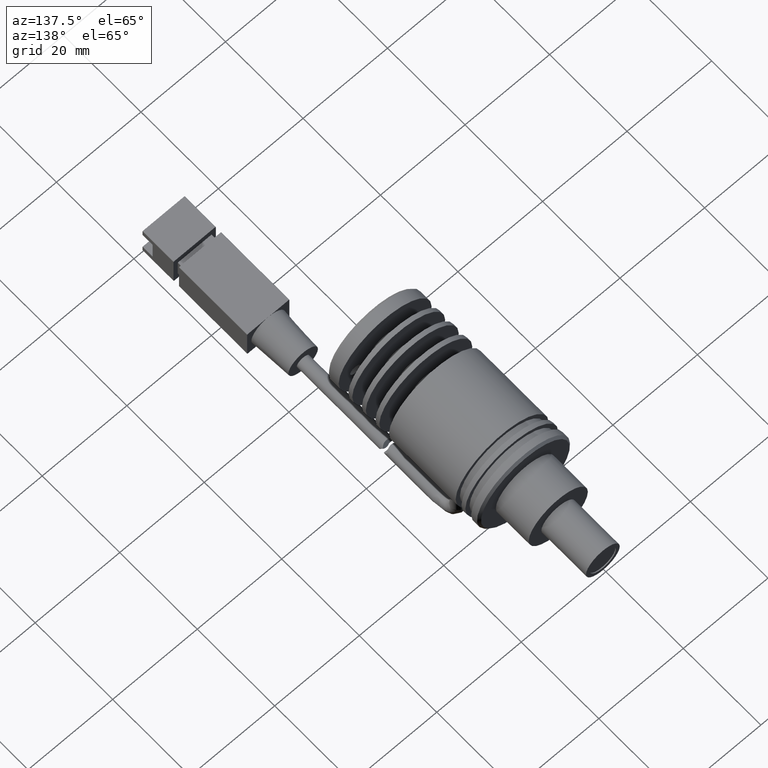
[diagram: clean part render]
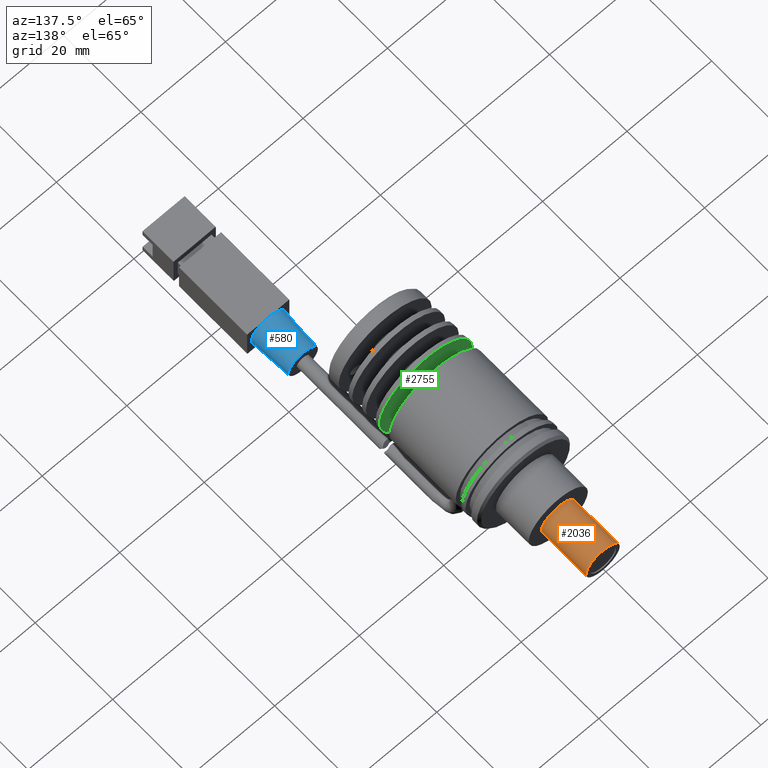
[diagram: same view with three faces highlighted in distinct colors, each labeled with its STEP entity id]
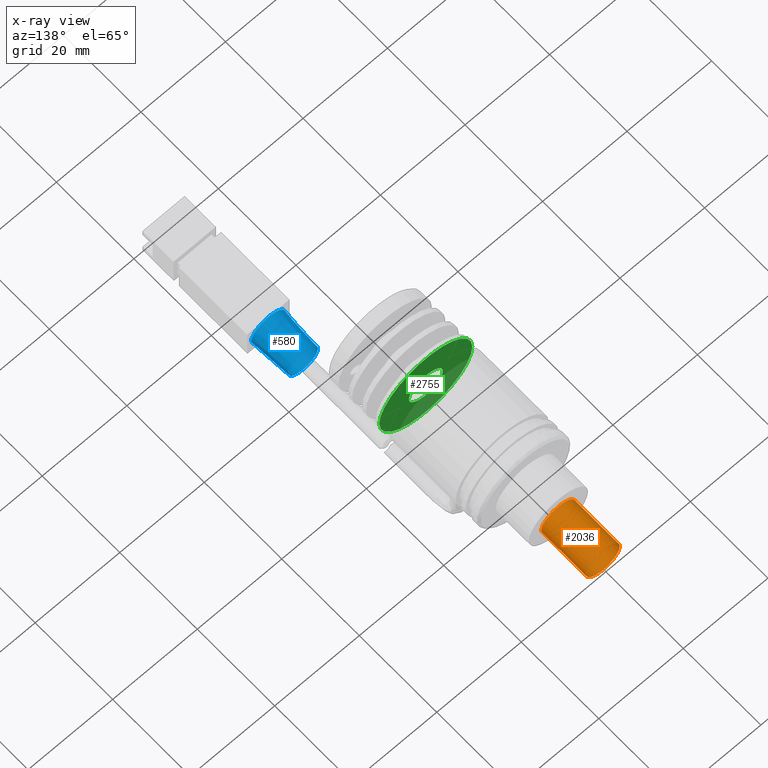
[diagram: x-ray of the same camera — body ghosted, the three highlighted faces saturated]
A machine part, auxiliary view with three faces highlighted in distinct colors.
The next image is the same camera in x-ray (body ghosted, the three faces saturated) — at least one of them is partly hidden behind the body in this view.
Their STEP definitions:

[orange] entity #2036 — the highlighted cylindrical surface (bore or boss wall) has radius 4 mm, axis along (-0, 1, -0).
#14 = AXIS2_PLACEMENT_3D ( 'NONE', #33, #651, #1996 ) ;
#33 = CARTESIAN_POINT ( 'NONE',  ( -26.62679400892661263, 33.82710231299243020, 59.20000000000436557 ) ) ;
#96 = FACE_OUTER_BOUND ( 'NONE', #1589, .T. ) ;
#252 = EDGE_CURVE ( 'NONE', #1435, #1435, #1110, .T. ) ;
#310 = CARTESIAN_POINT ( 'NONE',  ( -26.62679400892661263, 33.82710231299243020, 59.20000000000436557 ) ) ;
#401 = VERTEX_POINT ( 'NONE', #2621 ) ;
#519 = CIRCLE ( 'NONE', #14, 3.999999999994535926 ) ;
#570 = CYLINDRICAL_SURFACE ( 'NONE', #2453, 3.999999999994535926 ) ;
#651 = DIRECTION ( 'NONE',  ( 1.234232310948269202E-16, -1.000000000000000000, 0.000000000000000000 ) ) ;
#959 = DIRECTION ( 'NONE',  ( -1.000000000000000000, 0.000000000000000000, 0.000000000000000000 ) ) ;
#968 = AXIS2_PLACEMENT_3D ( 'NONE', #2667, #1099, #1265 ) ;
#1004 = DIRECTION ( 'NONE',  ( -1.234232310948269202E-16, 1.000000000000000000, -0.000000000000000000 ) ) ;
#1099 = DIRECTION ( 'NONE',  ( 1.234232310948269202E-16, -1.000000000000000000, 0.000000000000000000 ) ) ;
#1110 = CIRCLE ( 'NONE', #968, 3.999999999994535926 ) ;
#1152 = EDGE_LOOP ( 'NONE', ( #1682 ) ) ;
#1265 = DIRECTION ( 'NONE',  ( -1.000000000000000000, 0.000000000000000000, 0.000000000000000000 ) ) ;
#1435 = VERTEX_POINT ( 'NONE', #1452 ) ;
#1452 = CARTESIAN_POINT ( 'NONE',  ( -30.62679400892114856, 22.32710231299242665, 59.20000000000436557 ) ) ;
#1589 = EDGE_LOOP ( 'NONE', ( #2293 ) ) ;
#1682 = ORIENTED_EDGE ( 'NONE', *, *, #2341, .T. ) ;
#1996 = DIRECTION ( 'NONE',  ( -1.000000000000000000, 0.000000000000000000, 0.000000000000000000 ) ) ;
#2036 = ADVANCED_FACE ( 'NONE', ( #96, #2058 ), #570, .T. ) ;
#2058 = FACE_OUTER_BOUND ( 'NONE', #1152, .T. ) ;
#2293 = ORIENTED_EDGE ( 'NONE', *, *, #252, .F. ) ;
#2341 = EDGE_CURVE ( 'NONE', #401, #401, #519, .T. ) ;
#2453 = AXIS2_PLACEMENT_3D ( 'NONE', #310, #1004, #959 ) ;
#2621 = CARTESIAN_POINT ( 'NONE',  ( -30.62679400892114856, 33.82710231299243020, 59.20000000000436557 ) ) ;
#2667 = CARTESIAN_POINT ( 'NONE',  ( -26.62679400892661263, 22.32710231299242665, 59.20000000000436557 ) ) ;

[blue] entity #580 — the highlighted conical surface has half-angle 3.18 deg.
#164 = DIRECTION ( 'NONE',  ( -1.000000000000000000, 0.000000000000000000, 0.000000000000000000 ) ) ;
#202 = AXIS2_PLACEMENT_3D ( 'NONE', #1664, #2334, #1256 ) ;
#232 = VERTEX_POINT ( 'NONE', #1330 ) ;
#261 = CARTESIAN_POINT ( 'NONE',  ( -26.28038219277355481, -52.15289768699003758, 20.20000000000808527 ) ) ;
#275 = AXIS2_PLACEMENT_3D ( 'NONE', #1917, #1219, #1471 ) ;
#293 = EDGE_CURVE ( 'NONE', #232, #554, #1455, .T. ) ;
#483 = ORIENTED_EDGE ( 'NONE', *, *, #1132, .T. ) ;
#489 = DIRECTION ( 'NONE',  ( -1.000000000000000000, 0.000000000000000000, 1.734723475979515254E-15 ) ) ;
#554 = VERTEX_POINT ( 'NONE', #2378 ) ;
#580 = ADVANCED_FACE ( 'NONE', ( #778, #1464 ), #2689, .T. ) ;
#704 = ORIENTED_EDGE ( 'NONE', *, *, #1319, .T. ) ;
#778 = FACE_OUTER_BOUND ( 'NONE', #1469, .T. ) ;
#936 = AXIS2_PLACEMENT_3D ( 'NONE', #2215, #2354, #164 ) ;
#1132 = EDGE_CURVE ( 'NONE', #554, #232, #1739, .T. ) ;
#1219 = DIRECTION ( 'NONE',  ( 6.245004513516504307E-17, -1.000000000000000000, -8.320017359752858885E-32 ) ) ;
#1256 = DIRECTION ( 'NONE',  ( -1.000000000000000000, 0.000000000000000000, 0.000000000000000000 ) ) ;
#1319 = EDGE_CURVE ( 'NONE', #2104, #2104, #2541, .T. ) ;
#1330 = CARTESIAN_POINT ( 'NONE',  ( -26.28065555087320604, -52.15289768697343931, 24.19999999534773494 ) ) ;
#1348 = DIRECTION ( 'NONE',  ( -6.245004513516504307E-17, 1.000000000000000000, 8.320017359752858885E-32 ) ) ;
#1455 = CIRCLE ( 'NONE', #936, 3.999999999993755218 ) ;
#1464 = FACE_BOUND ( 'NONE', #2097, .T. ) ;
#1469 = EDGE_LOOP ( 'NONE', ( #483, #1677 ) ) ;
#1471 = DIRECTION ( 'NONE',  ( -1.000000000000000000, 0.000000000000000000, 0.000000000000000000 ) ) ;
#1664 = CARTESIAN_POINT ( 'NONE',  ( -26.28038219277355481, -52.15289768681950022, 20.20000000000808527 ) ) ;
#1677 = ORIENTED_EDGE ( 'NONE', *, *, #293, .T. ) ;
#1739 = CIRCLE ( 'NONE', #2009, 3.999999999993755218 ) ;
#1917 = CARTESIAN_POINT ( 'NONE',  ( -26.28038219277355481, -43.15289768703232909, 20.20000000000808527 ) ) ;
#2009 = AXIS2_PLACEMENT_3D ( 'NONE', #261, #1348, #489 ) ;
#2097 = EDGE_LOOP ( 'NONE', ( #704 ) ) ;
#2104 = VERTEX_POINT ( 'NONE', #2352 ) ;
#2215 = CARTESIAN_POINT ( 'NONE',  ( -26.28038219277355481, -52.15289768699003758, 20.20000000000808527 ) ) ;
#2334 = DIRECTION ( 'NONE',  ( 6.245004513516504307E-17, -1.000000000000000000, -8.320017359752858885E-32 ) ) ;
#2352 = CARTESIAN_POINT ( 'NONE',  ( -29.78038219276847443, -43.15289768703232909, 20.20000000000808527 ) ) ;
#2354 = DIRECTION ( 'NONE',  ( -6.245004513516504307E-17, 1.000000000000000000, 8.320017359752858885E-32 ) ) ;
#2378 = CARTESIAN_POINT ( 'NONE',  ( -26.28038219277355481, -52.15289768697252271, 16.20000000001239826 ) ) ;
#2541 = CIRCLE ( 'NONE', #275, 3.499999999994920508 ) ;
#2689 = CONICAL_SURFACE ( 'NONE', #202, 3.999999999984280130, 0.05549850524584801215 ) ;

[green] entity #2755 — the highlighted planar face has unit normal (-0, 1, 0).
#41 = DIRECTION ( 'NONE',  ( -1.000000000000000000, -1.234232310948269202E-16, 0.000000000000000000 ) ) ;
#73 = DIRECTION ( 'NONE',  ( -1.000000000000000000, 0.000000000000000000, 0.000000000000000000 ) ) ;
#231 = AXIS2_PLACEMENT_3D ( 'NONE', #471, #2669, #41 ) ;
#302 = FACE_OUTER_BOUND ( 'NONE', #1942, .T. ) ;
#314 = VERTEX_POINT ( 'NONE', #342 ) ;
#342 = CARTESIAN_POINT ( 'NONE',  ( -30.62679400892387704, -11.87289768700830450, 59.20000000000436557 ) ) ;
#344 = CARTESIAN_POINT ( 'NONE',  ( -26.62679400892660908, -11.87289768700830450, 59.20000000000436557 ) ) ;
#471 = CARTESIAN_POINT ( 'NONE',  ( -30.62679400892387704, -11.87289768700830273, 59.20000000000436557 ) ) ;
#482 = PLANE ( 'NONE',  #231 ) ;
#501 = FACE_BOUND ( 'NONE', #2457, .T. ) ;
#524 = CIRCLE ( 'NONE', #2142, 3.999999999997269740 ) ;
#640 = EDGE_CURVE ( 'NONE', #2759, #2759, #2619, .T. ) ;
#1083 = CARTESIAN_POINT ( 'NONE',  ( -26.62679400892660908, -11.87289768700830450, 59.20000000000436557 ) ) ;
#1205 = DIRECTION ( 'NONE',  ( -1.234232310948269202E-16, 1.000000000000000000, -0.000000000000000000 ) ) ;
#1454 = EDGE_CURVE ( 'NONE', #314, #314, #524, .T. ) ;
#1562 = DIRECTION ( 'NONE',  ( -1.234232310948269202E-16, 1.000000000000000000, -0.000000000000000000 ) ) ;
#1601 = ORIENTED_EDGE ( 'NONE', *, *, #1454, .F. ) ;
#1753 = AXIS2_PLACEMENT_3D ( 'NONE', #1083, #1562, #1789 ) ;
#1789 = DIRECTION ( 'NONE',  ( -1.000000000000000000, -1.577021341797619688E-16, 0.000000000000000000 ) ) ;
#1942 = EDGE_LOOP ( 'NONE', ( #2122 ) ) ;
#2122 = ORIENTED_EDGE ( 'NONE', *, *, #640, .T. ) ;
#2142 = AXIS2_PLACEMENT_3D ( 'NONE', #344, #1205, #73 ) ;
#2457 = EDGE_LOOP ( 'NONE', ( #1601 ) ) ;
#2619 = CIRCLE ( 'NONE', #1753, 10.99999999999635669 ) ;
#2669 = DIRECTION ( 'NONE',  ( -1.234232310948269202E-16, 1.000000000000000000, 0.000000000000000000 ) ) ;
#2755 = ADVANCED_FACE ( 'NONE', ( #501, #302 ), #482, .T. ) ;
#2759 = VERTEX_POINT ( 'NONE', #2788 ) ;
#2788 = CARTESIAN_POINT ( 'NONE',  ( -37.62679400892296400, -11.87289768700830628, 59.20000000000436557 ) ) ;